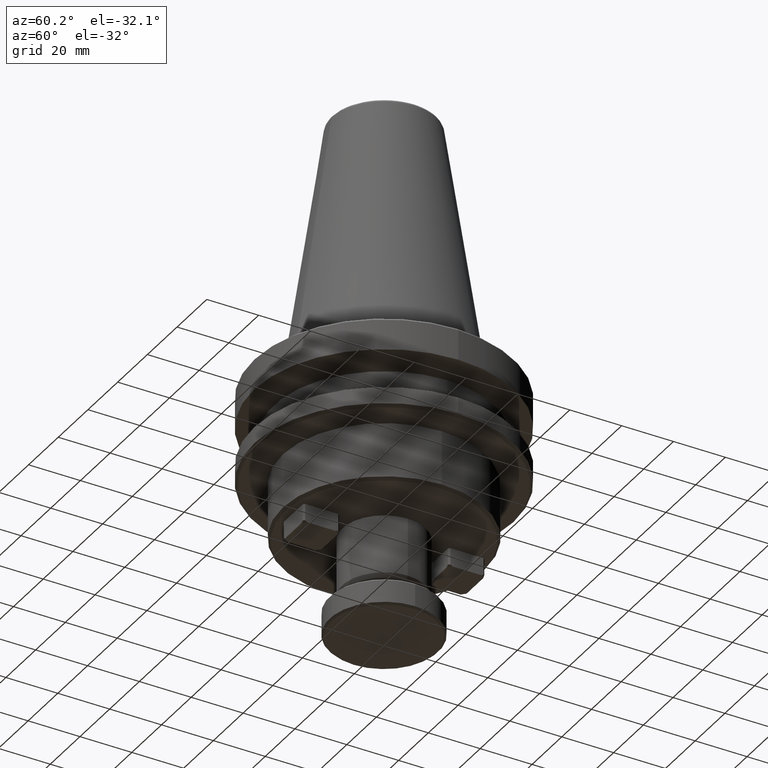
[diagram: clean part render]
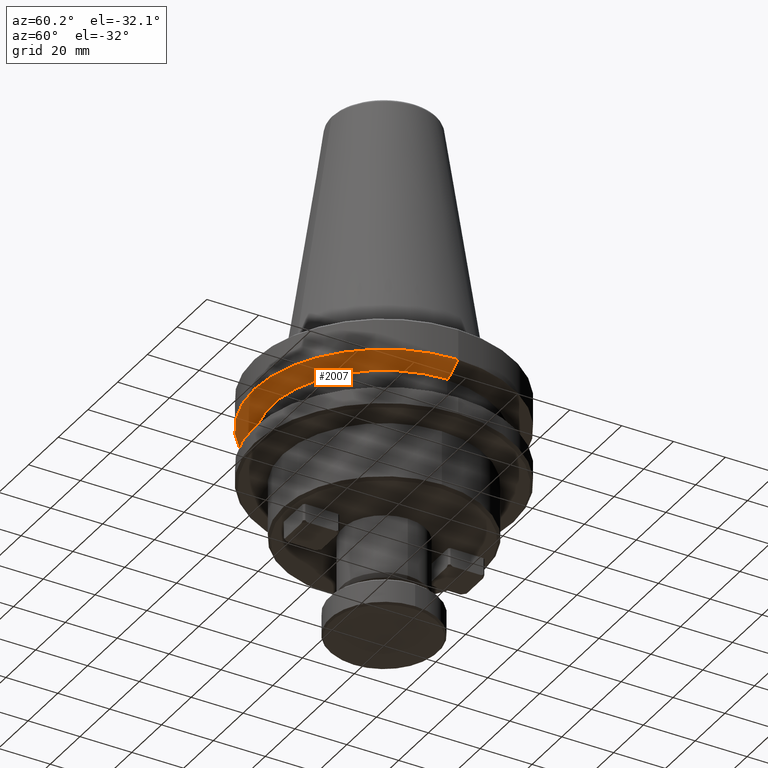
[diagram: same view with one face highlighted and labeled with its STEP entity id]
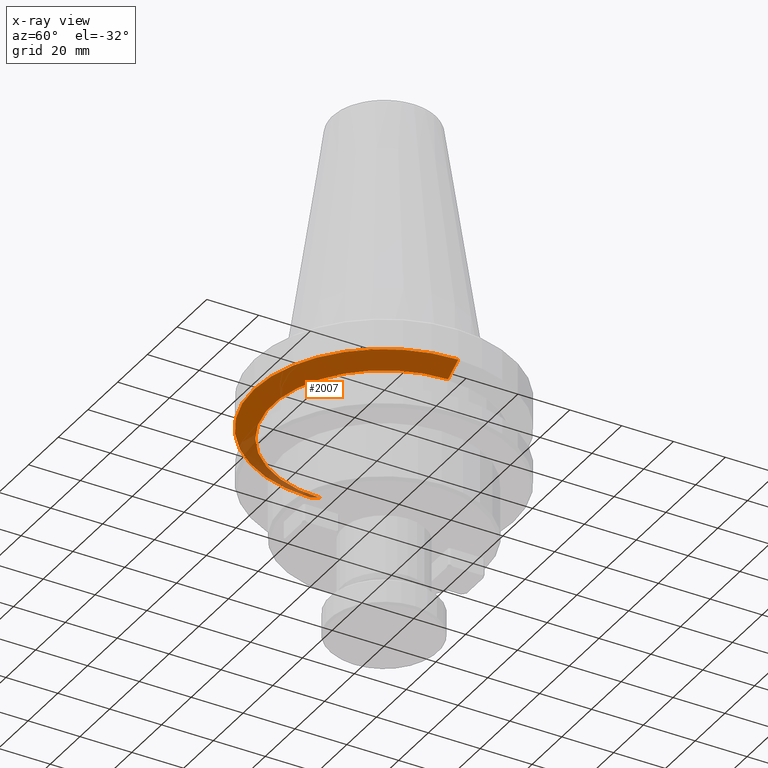
[diagram: x-ray of the same camera — body ghosted, the highlighted face saturated]
A machine part, auxiliary view. The second image highlights one B-rep face of the part: STEP entity #2007.
The next image is the same camera in x-ray: the body ghosted, the highlighted face saturated — about 12% of this face is hidden behind the body in this view.
In plain terms, the highlighted conical surface has half-angle 60 deg.
Its self-contained STEP definition (entity closure, byte-faithful):
#16 = CONICAL_SURFACE ( 'NONE', #1819, 50.00000000000002100, 1.047197551196597900 ) ;
#37 = LINE ( 'NONE', #2546, #473 ) ;
#51 = CIRCLE ( 'NONE', #1113, 43.07217782649103600 ) ;
#103 = CIRCLE ( 'NONE', #1716, 50.00000000000000000 ) ;
#257 = VERTEX_POINT ( 'NONE', #1261 ) ;
#301 = EDGE_CURVE ( 'NONE', #2621, #257, #103, .T. ) ;
#304 = EDGE_CURVE ( 'NONE', #1759, #520, #51, .T. ) ;
#317 = ORIENTED_EDGE ( 'NONE', *, *, #2579, .F. ) ;
#445 = EDGE_LOOP ( 'NONE', ( #317, #2685, #743, #1491 ) ) ;
#473 = VECTOR ( 'NONE', #2528, 1000.000000000000000 ) ;
#520 = VERTEX_POINT ( 'NONE', #1001 ) ;
#743 = ORIENTED_EDGE ( 'NONE', *, *, #1873, .T. ) ;
#911 = LINE ( 'NONE', #1118, #1951 ) ;
#1001 = CARTESIAN_POINT ( 'NONE',  ( 43.07217782649103600, 0.0000000000000000000, -19.70000000000001000 ) ) ;
#1063 = FACE_OUTER_BOUND ( 'NONE', #445, .T. ) ;
#1091 = CARTESIAN_POINT ( 'NONE',  ( -50.00000000000000000, 6.123233995736765300E-015, -15.70022000322675400 ) ) ;
#1105 = DIRECTION ( 'NONE',  ( -0.8660254037844387100, 1.060575238724906900E-016, 0.4999999999999998900 ) ) ;
#1113 = AXIS2_PLACEMENT_3D ( 'NONE', #1428, #1497, #2181 ) ;
#1118 = CARTESIAN_POINT ( 'NONE',  ( -50.00000000000002100, 6.123233995736768500E-015, -15.70022000322674000 ) ) ;
#1261 = CARTESIAN_POINT ( 'NONE',  ( 50.00000000000000000, 0.0000000000000000000, -15.70022000322675400 ) ) ;
#1428 = CARTESIAN_POINT ( 'NONE',  ( 0.0000000000000000000, 0.0000000000000000000, -19.70000000000001000 ) ) ;
#1488 = CARTESIAN_POINT ( 'NONE',  ( 0.0000000000000000000, 0.0000000000000000000, -15.70022000322675400 ) ) ;
#1491 = ORIENTED_EDGE ( 'NONE', *, *, #301, .F. ) ;
#1497 = DIRECTION ( 'NONE',  ( 0.0000000000000000000, 0.0000000000000000000, 1.000000000000000000 ) ) ;
#1716 = AXIS2_PLACEMENT_3D ( 'NONE', #1488, #1728, #2358 ) ;
#1728 = DIRECTION ( 'NONE',  ( 0.0000000000000000000, 0.0000000000000000000, 1.000000000000000000 ) ) ;
#1759 = VERTEX_POINT ( 'NONE', #2631 ) ;
#1819 = AXIS2_PLACEMENT_3D ( 'NONE', #2233, #2246, #2241 ) ;
#1873 = EDGE_CURVE ( 'NONE', #520, #257, #37, .T. ) ;
#1951 = VECTOR ( 'NONE', #1105, 1000.000000000000000 ) ;
#2007 = ADVANCED_FACE ( 'NONE', ( #1063 ), #16, .T. ) ;
#2181 = DIRECTION ( 'NONE',  ( 1.000000000000000000, 0.0000000000000000000, 0.0000000000000000000 ) ) ;
#2233 = CARTESIAN_POINT ( 'NONE',  ( 0.0000000000000000000, 0.0000000000000000000, -15.70022000322674000 ) ) ;
#2241 = DIRECTION ( 'NONE',  ( 1.000000000000000000, 0.0000000000000000000, 0.0000000000000000000 ) ) ;
#2246 = DIRECTION ( 'NONE',  ( 0.0000000000000000000, 0.0000000000000000000, 1.000000000000000000 ) ) ;
#2358 = DIRECTION ( 'NONE',  ( 1.000000000000000000, 0.0000000000000000000, 0.0000000000000000000 ) ) ;
#2528 = DIRECTION ( 'NONE',  ( 0.8660254037844387100, 0.0000000000000000000, 0.4999999999999998900 ) ) ;
#2546 = CARTESIAN_POINT ( 'NONE',  ( 50.00000000000002100, 0.0000000000000000000, -15.70022000322674000 ) ) ;
#2579 = EDGE_CURVE ( 'NONE', #1759, #2621, #911, .T. ) ;
#2621 = VERTEX_POINT ( 'NONE', #1091 ) ;
#2631 = CARTESIAN_POINT ( 'NONE',  ( -43.07217782649103600, 5.699027233244276000E-015, -19.70000000000001000 ) ) ;
#2685 = ORIENTED_EDGE ( 'NONE', *, *, #304, .T. ) ;